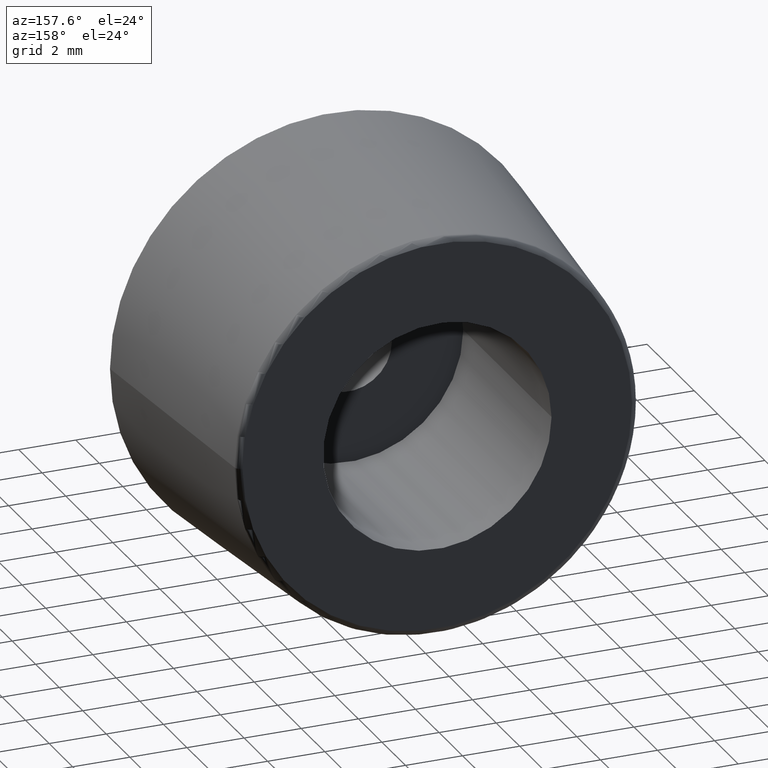
[diagram: clean part render]
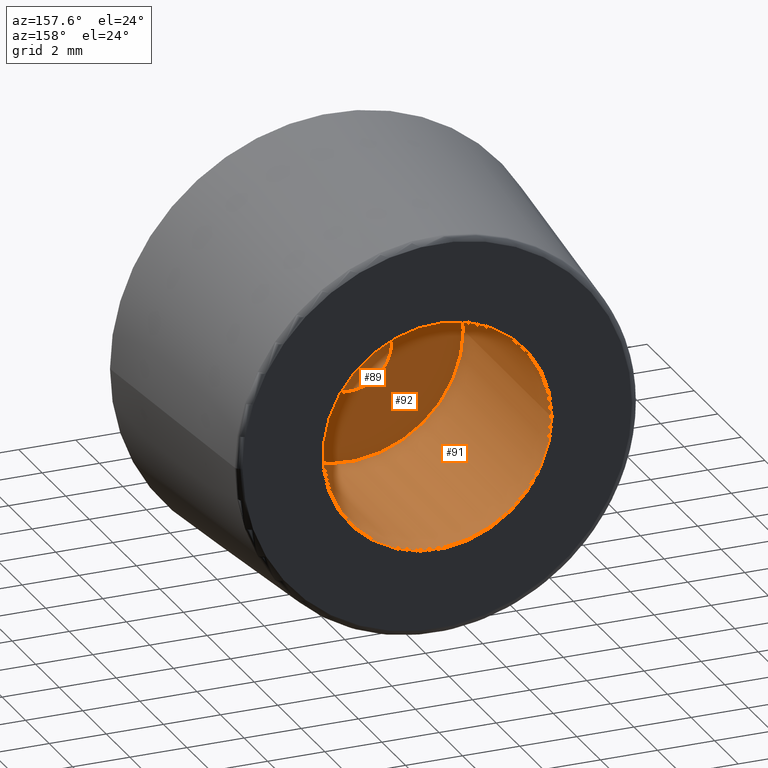
[diagram: same view with one multi-face feature highlighted, each face labeled with its STEP entity id]
A machine part, auxiliary view. The highlighted faces form ONE feature: a stepped (counterbored) hole: 2 coaxial cylindrical walls of radii 1.5 -> 4 mm joined by 1 annular planar shoulder face(s). The faces share edges in the B-rep.
Their STEP definitions:
[1] entity #91 (Cylinder):
#16=CYLINDRICAL_SURFACE('',#107,4.);
#26=FACE_BOUND('',#46,.T.);
#33=FACE_OUTER_BOUND('',#45,.T.);
#45=EDGE_LOOP('',(#80));
#46=EDGE_LOOP('',(#81));
#52=CIRCLE('',#100,4.);
#56=CIRCLE('',#108,4.);
#59=VERTEX_POINT('',#150);
#63=VERTEX_POINT('',#162);
#66=EDGE_CURVE('',#59,#59,#52,.T.);
#70=EDGE_CURVE('',#63,#63,#56,.T.);
#80=ORIENTED_EDGE('',*,*,#66,.F.);
#81=ORIENTED_EDGE('',*,*,#70,.F.);
#91=ADVANCED_FACE('',(#33,#26),#16,.F.);
#100=AXIS2_PLACEMENT_3D('',#151,#121,#122);
#107=AXIS2_PLACEMENT_3D('',#161,#135,#136);
#108=AXIS2_PLACEMENT_3D('',#163,#137,#138);
#121=DIRECTION('center_axis',(0.,-1.,0.));
#122=DIRECTION('ref_axis',(-1.,0.,0.));
#135=DIRECTION('center_axis',(0.,1.,0.));
#136=DIRECTION('ref_axis',(-1.,0.,0.));
#137=DIRECTION('center_axis',(0.,1.,0.));
#138=DIRECTION('ref_axis',(-1.,0.,0.));
#150=CARTESIAN_POINT('',(-4.,9.,0.));
#151=CARTESIAN_POINT('Origin',(0.,9.,0.));
#161=CARTESIAN_POINT('Origin',(0.,5.25,0.));
#162=CARTESIAN_POINT('',(-4.,1.5,0.));
#163=CARTESIAN_POINT('Origin',(0.,1.5,0.));
[2] entity #89 (Cylinder):
#15=CYLINDRICAL_SURFACE('',#103,1.5);
#25=FACE_BOUND('',#43,.T.);
#31=FACE_OUTER_BOUND('',#42,.T.);
#42=EDGE_LOOP('',(#77));
#43=EDGE_LOOP('',(#78));
#54=CIRCLE('',#104,1.5);
#55=CIRCLE('',#105,1.5);
#61=VERTEX_POINT('',#156);
#62=VERTEX_POINT('',#158);
#68=EDGE_CURVE('',#61,#61,#54,.T.);
#69=EDGE_CURVE('',#62,#62,#55,.T.);
#77=ORIENTED_EDGE('',*,*,#68,.F.);
#78=ORIENTED_EDGE('',*,*,#69,.F.);
#89=ADVANCED_FACE('',(#31,#25),#15,.F.);
#103=AXIS2_PLACEMENT_3D('',#155,#127,#128);
#104=AXIS2_PLACEMENT_3D('',#157,#129,#130);
#105=AXIS2_PLACEMENT_3D('',#159,#131,#132);
#127=DIRECTION('center_axis',(0.,1.,0.));
#128=DIRECTION('ref_axis',(-1.,0.,0.));
#129=DIRECTION('center_axis',(0.,-1.,0.));
#130=DIRECTION('ref_axis',(-1.,0.,0.));
#131=DIRECTION('center_axis',(0.,1.,0.));
#132=DIRECTION('ref_axis',(-1.,0.,0.));
#155=CARTESIAN_POINT('Origin',(0.,0.85,0.));
#156=CARTESIAN_POINT('',(-1.5,1.5,0.));
#157=CARTESIAN_POINT('Origin',(0.,1.5,0.));
#158=CARTESIAN_POINT('',(-1.5,0.2,0.));
#159=CARTESIAN_POINT('Origin',(0.,0.2,0.));
[3] entity #92 (Plane):
#20=PLANE('',#109);
#27=FACE_BOUND('',#48,.T.);
#34=FACE_OUTER_BOUND('',#47,.T.);
#47=EDGE_LOOP('',(#82));
#48=EDGE_LOOP('',(#83));
#54=CIRCLE('',#104,1.5);
#56=CIRCLE('',#108,4.);
#61=VERTEX_POINT('',#156);
#63=VERTEX_POINT('',#162);
#68=EDGE_CURVE('',#61,#61,#54,.T.);
#70=EDGE_CURVE('',#63,#63,#56,.T.);
#82=ORIENTED_EDGE('',*,*,#70,.T.);
#83=ORIENTED_EDGE('',*,*,#68,.T.);
#92=ADVANCED_FACE('',(#34,#27),#20,.T.);
#104=AXIS2_PLACEMENT_3D('',#157,#129,#130);
#108=AXIS2_PLACEMENT_3D('',#163,#137,#138);
#109=AXIS2_PLACEMENT_3D('',#164,#139,#140);
#129=DIRECTION('center_axis',(0.,-1.,0.));
#130=DIRECTION('ref_axis',(-1.,0.,0.));
#137=DIRECTION('center_axis',(0.,1.,0.));
#138=DIRECTION('ref_axis',(-1.,0.,0.));
#139=DIRECTION('center_axis',(0.,1.,0.));
#140=DIRECTION('ref_axis',(-1.,0.,0.));
#156=CARTESIAN_POINT('',(-1.5,1.5,0.));
#157=CARTESIAN_POINT('Origin',(0.,1.5,0.));
#162=CARTESIAN_POINT('',(-4.,1.5,0.));
#163=CARTESIAN_POINT('Origin',(0.,1.5,0.));
#164=CARTESIAN_POINT('Origin',(0.,1.5,0.));